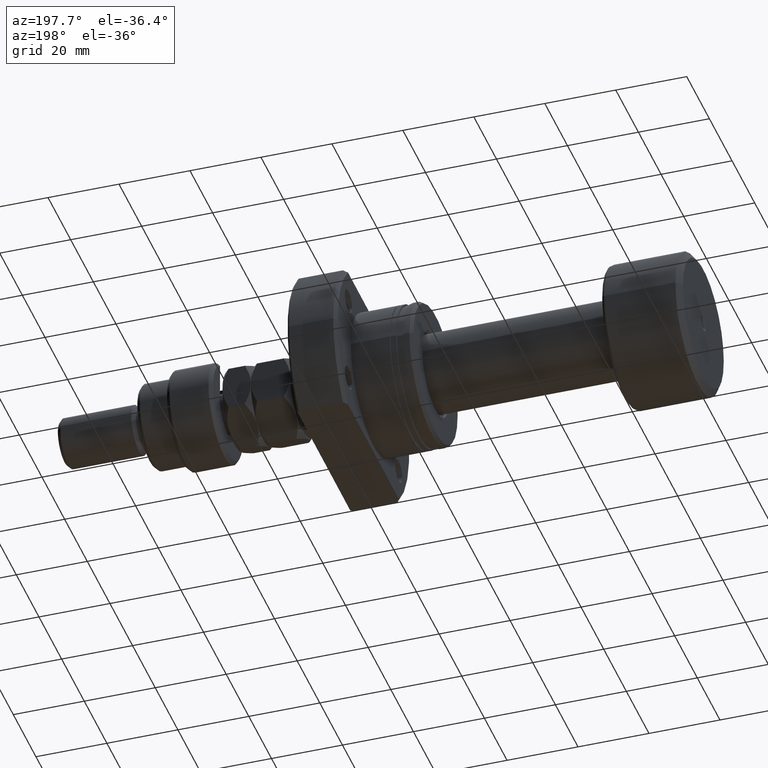
[diagram: clean part render]
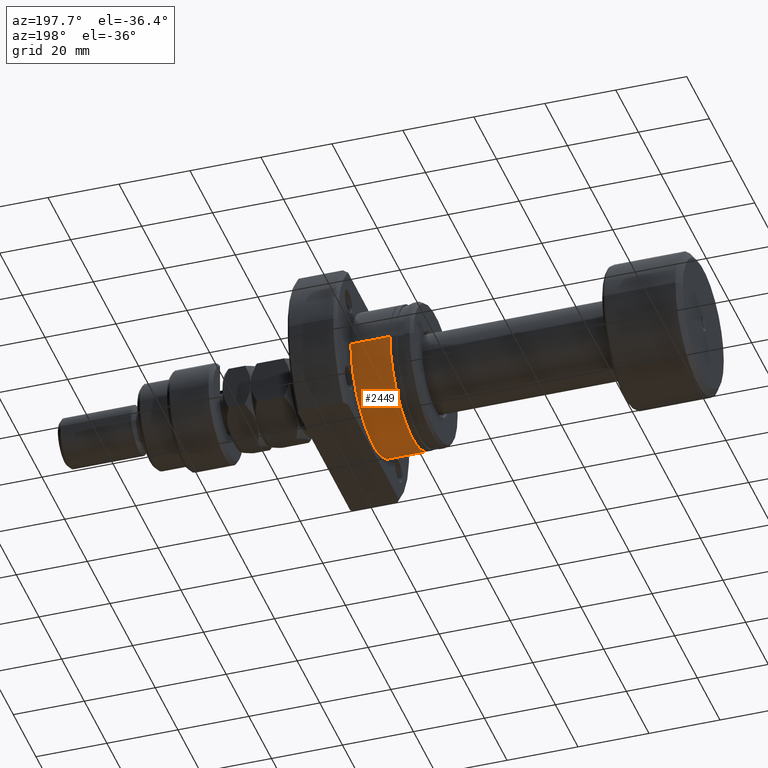
[diagram: same view with one face highlighted and labeled with its STEP entity id]
A machine part, auxiliary view. The second image highlights one B-rep face of the part: STEP entity #2449.
In plain terms, the highlighted cylindrical surface (partial cylindrical patch) has radius 20 mm, axis along (1, 0, 0).
Its self-contained STEP definition (entity closure, byte-faithful):
#29 = VERTEX_POINT ( 'NONE', #1054 ) ;
#34 = VECTOR ( 'NONE', #5338, 1000.000000000000000 ) ;
#106 = VERTEX_POINT ( 'NONE', #3009 ) ;
#401 = CARTESIAN_POINT ( 'NONE',  ( 31.50000000000000000, 8.572527594031465301E-16, 0.000000000000000000 ) ) ;
#645 = CARTESIAN_POINT ( 'NONE',  ( 17.50000000000000000, 4.762515330017480942E-16, 0.000000000000000000 ) ) ;
#1054 = CARTESIAN_POINT ( 'NONE',  ( 6.499999999999784173, -19.99999999999999645, 2.449293598294706119E-15 ) ) ;
#1114 = ORIENTED_EDGE ( 'NONE', *, *, #5867, .F. ) ;
#1293 = FACE_OUTER_BOUND ( 'NONE', #4704, .T. ) ;
#1343 = CARTESIAN_POINT ( 'NONE',  ( 17.50000000000000000, 19.99999999999999645, 0.000000000000000000 ) ) ;
#1663 = CARTESIAN_POINT ( 'NONE',  ( 6.499999999999783284, 19.99999999999999645, 0.000000000000000000 ) ) ;
#1710 = CARTESIAN_POINT ( 'NONE',  ( 31.50000000000000000, 19.99999999999999645, 0.000000000000000000 ) ) ;
#2011 = AXIS2_PLACEMENT_3D ( 'NONE', #645, #2085, #5805 ) ;
#2074 = ORIENTED_EDGE ( 'NONE', *, *, #3206, .T. ) ;
#2085 = DIRECTION ( 'NONE',  ( 1.000000000000000000, 2.721437331438560389E-17, -0.000000000000000000 ) ) ;
#2271 = CYLINDRICAL_SURFACE ( 'NONE', #4154, 19.99999999999999645 ) ;
#2449 = ADVANCED_FACE ( 'NONE', ( #1293 ), #2271, .T. ) ;
#2509 = DIRECTION ( 'NONE',  ( 1.000000000000000000, 2.721437331438560389E-17, -0.000000000000000000 ) ) ;
#2602 = CARTESIAN_POINT ( 'NONE',  ( 31.50000000000000000, -19.99999999999999645, 2.449293598294706119E-15 ) ) ;
#2823 = VERTEX_POINT ( 'NONE', #1663 ) ;
#2987 = VECTOR ( 'NONE', #2509, 1000.000000000000000 ) ;
#3009 = CARTESIAN_POINT ( 'NONE',  ( 17.50000000000000000, -19.99999999999999645, 2.449293598294706119E-15 ) ) ;
#3206 = EDGE_CURVE ( 'NONE', #2823, #3369, #5879, .T. ) ;
#3369 = VERTEX_POINT ( 'NONE', #1343 ) ;
#3383 = EDGE_CURVE ( 'NONE', #29, #2823, #4260, .T. ) ;
#3549 = DIRECTION ( 'NONE',  ( 0.000000000000000000, 1.000000000000000000, 0.000000000000000000 ) ) ;
#4066 = ORIENTED_EDGE ( 'NONE', *, *, #4129, .F. ) ;
#4129 = EDGE_CURVE ( 'NONE', #106, #3369, #5433, .T. ) ;
#4154 = AXIS2_PLACEMENT_3D ( 'NONE', #401, #5425, #3549 ) ;
#4213 = DIRECTION ( 'NONE',  ( -4.336808689942018352E-17, 1.000000000000000000, 0.000000000000000000 ) ) ;
#4260 = CIRCLE ( 'NONE', #5527, 19.99999999999999645 ) ;
#4470 = LINE ( 'NONE', #2602, #2987 ) ;
#4581 = DIRECTION ( 'NONE',  ( 1.000000000000000000, 2.721437331438560389E-17, -0.000000000000000000 ) ) ;
#4704 = EDGE_LOOP ( 'NONE', ( #1114, #4926, #2074, #4066 ) ) ;
#4926 = ORIENTED_EDGE ( 'NONE', *, *, #3383, .T. ) ;
#5338 = DIRECTION ( 'NONE',  ( 1.000000000000000000, 2.721437331438560389E-17, -0.000000000000000000 ) ) ;
#5425 = DIRECTION ( 'NONE',  ( 1.000000000000000000, 2.721437331438560389E-17, -0.000000000000000000 ) ) ;
#5433 = CIRCLE ( 'NONE', #2011, 19.99999999999999645 ) ;
#5527 = AXIS2_PLACEMENT_3D ( 'NONE', #5558, #4581, #4213 ) ;
#5558 = CARTESIAN_POINT ( 'NONE',  ( 6.499999999999783284, 1.768934265435005073E-16, 0.000000000000000000 ) ) ;
#5805 = DIRECTION ( 'NONE',  ( 0.000000000000000000, 1.000000000000000000, 0.000000000000000000 ) ) ;
#5867 = EDGE_CURVE ( 'NONE', #29, #106, #4470, .T. ) ;
#5879 = LINE ( 'NONE', #1710, #34 ) ;